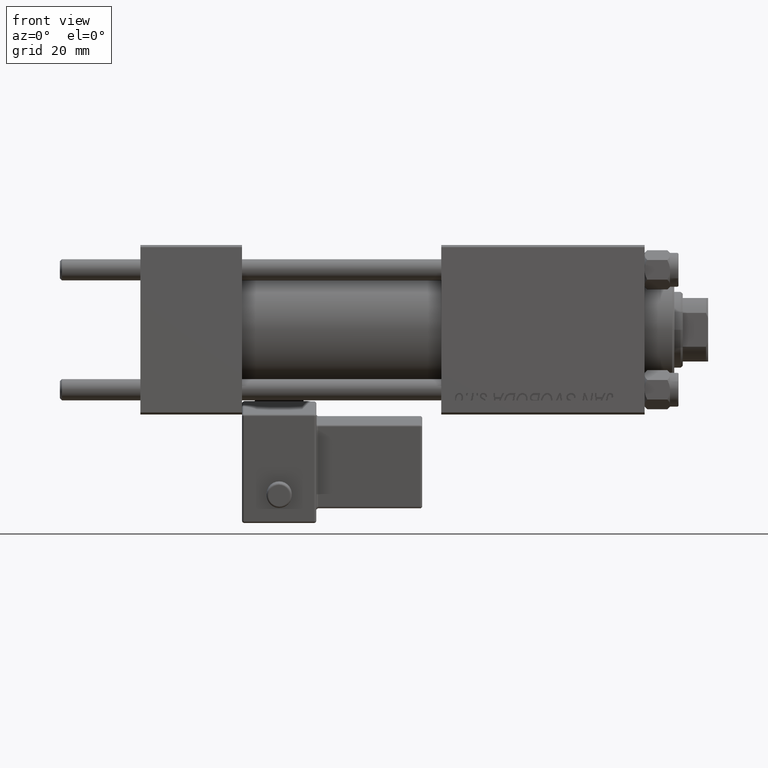
[diagram: clean part render]
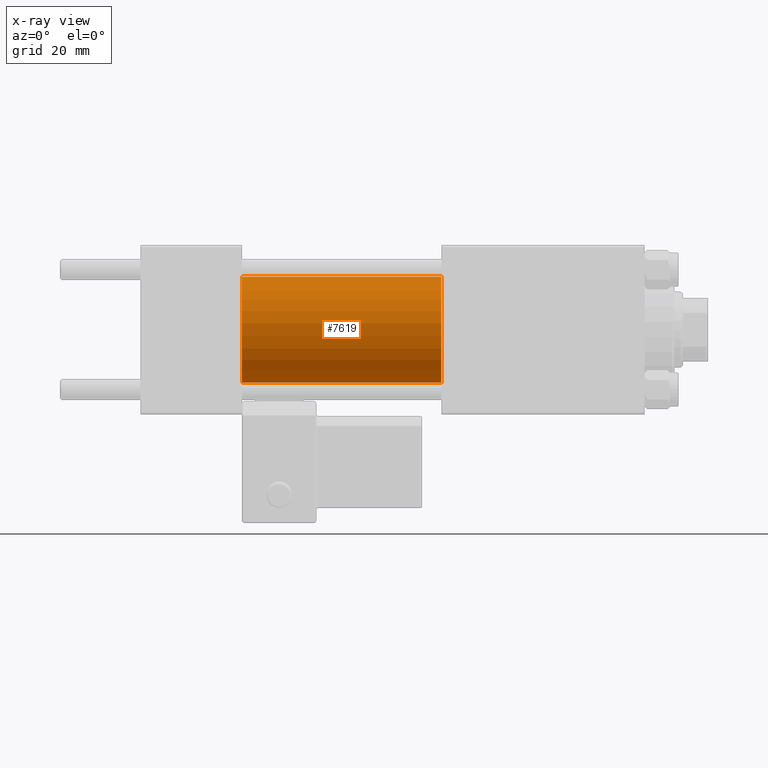
[diagram: x-ray — body ghosted, one internal face saturated and labeled with its STEP entity id]
A machine part, front view, then the same camera in x-ray: the body is ghosted and one INTERNAL B-rep face — a face not visible from any outside direction — is saturated and labeled: STEP entity #7619.
In plain terms, the highlighted cylindrical surface (partial cylindrical patch) has radius 12.5 mm, axis along (-1, -0, -0).
Its self-contained STEP definition (entity closure, byte-faithful):
#132 = DIRECTION ( 'NONE',  ( -1.000000000000000000, -0.000000000000000000, -0.000000000000000000 ) ) ;
#3502 = AXIS2_PLACEMENT_3D ( 'NONE', #8537, #132, #40591 ) ;
#4161 = EDGE_LOOP ( 'NONE', ( #46621, #45466, #17660, #6374 ) ) ;
#6374 = ORIENTED_EDGE ( 'NONE', *, *, #8879, .F. ) ;
#7021 = VECTOR ( 'NONE', #32481, 1000.000000000000000 ) ;
#7027 = CIRCLE ( 'NONE', #27978, 12.49999999999999645 ) ;
#7619 = ADVANCED_FACE ( 'NONE', ( #48220 ), #32692, .F. ) ;
#8199 = CARTESIAN_POINT ( 'NONE',  ( 71.00000000000001421, 0.000000000000000000, 12.49999999999999645 ) ) ;
#8537 = CARTESIAN_POINT ( 'NONE',  ( 71.00000000000001421, 0.000000000000000000, 0.000000000000000000 ) ) ;
#8879 = EDGE_CURVE ( 'NONE', #39446, #48308, #50894, .T. ) ;
#10336 = DIRECTION ( 'NONE',  ( 0.000000000000000000, 0.000000000000000000, -1.000000000000000000 ) ) ;
#11267 = CARTESIAN_POINT ( 'NONE',  ( 24.00000000000000000, 0.000000000000000000, 12.49999999999999645 ) ) ;
#11370 = CARTESIAN_POINT ( 'NONE',  ( 71.00000000000001421, 1.530808498934191127E-15, -12.49999999999999645 ) ) ;
#11641 = VERTEX_POINT ( 'NONE', #11370 ) ;
#17660 = ORIENTED_EDGE ( 'NONE', *, *, #22338, .F. ) ;
#17685 = CARTESIAN_POINT ( 'NONE',  ( 71.00000000000001421, 0.000000000000000000, 0.000000000000000000 ) ) ;
#20203 = AXIS2_PLACEMENT_3D ( 'NONE', #35485, #48089, #39950 ) ;
#21894 = DIRECTION ( 'NONE',  ( 1.000000000000000000, 0.000000000000000000, 0.000000000000000000 ) ) ;
#22338 = EDGE_CURVE ( 'NONE', #48308, #51124, #51255, .T. ) ;
#23279 = DIRECTION ( 'NONE',  ( -1.000000000000000000, -0.000000000000000000, -0.000000000000000000 ) ) ;
#23683 = VECTOR ( 'NONE', #23279, 1000.000000000000000 ) ;
#27978 = AXIS2_PLACEMENT_3D ( 'NONE', #17685, #21894, #10336 ) ;
#28090 = EDGE_CURVE ( 'NONE', #39446, #11641, #7027, .T. ) ;
#32481 = DIRECTION ( 'NONE',  ( -1.000000000000000000, -0.000000000000000000, -0.000000000000000000 ) ) ;
#32692 = CYLINDRICAL_SURFACE ( 'NONE', #3502, 12.49999999999999645 ) ;
#35485 = CARTESIAN_POINT ( 'NONE',  ( 24.00000000000000000, 0.000000000000000000, 0.000000000000000000 ) ) ;
#39446 = VERTEX_POINT ( 'NONE', #8199 ) ;
#39950 = DIRECTION ( 'NONE',  ( 0.000000000000000000, 0.000000000000000000, -1.000000000000000000 ) ) ;
#40591 = DIRECTION ( 'NONE',  ( 0.000000000000000000, 0.000000000000000000, 1.000000000000000000 ) ) ;
#42308 = CARTESIAN_POINT ( 'NONE',  ( 24.00000000000000000, 1.530808498934191127E-15, -12.49999999999999645 ) ) ;
#45466 = ORIENTED_EDGE ( 'NONE', *, *, #46282, .T. ) ;
#46282 = EDGE_CURVE ( 'NONE', #11641, #51124, #48770, .T. ) ;
#46621 = ORIENTED_EDGE ( 'NONE', *, *, #28090, .T. ) ;
#48089 = DIRECTION ( 'NONE',  ( 1.000000000000000000, 0.000000000000000000, 0.000000000000000000 ) ) ;
#48220 = FACE_OUTER_BOUND ( 'NONE', #4161, .T. ) ;
#48308 = VERTEX_POINT ( 'NONE', #11267 ) ;
#48510 = CARTESIAN_POINT ( 'NONE',  ( 71.00000000000001421, 1.530808498934191127E-15, -12.49999999999999645 ) ) ;
#48770 = LINE ( 'NONE', #48510, #7021 ) ;
#50894 = LINE ( 'NONE', #51915, #23683 ) ;
#51124 = VERTEX_POINT ( 'NONE', #42308 ) ;
#51255 = CIRCLE ( 'NONE', #20203, 12.49999999999999645 ) ;
#51915 = CARTESIAN_POINT ( 'NONE',  ( 71.00000000000001421, 0.000000000000000000, 12.49999999999999645 ) ) ;